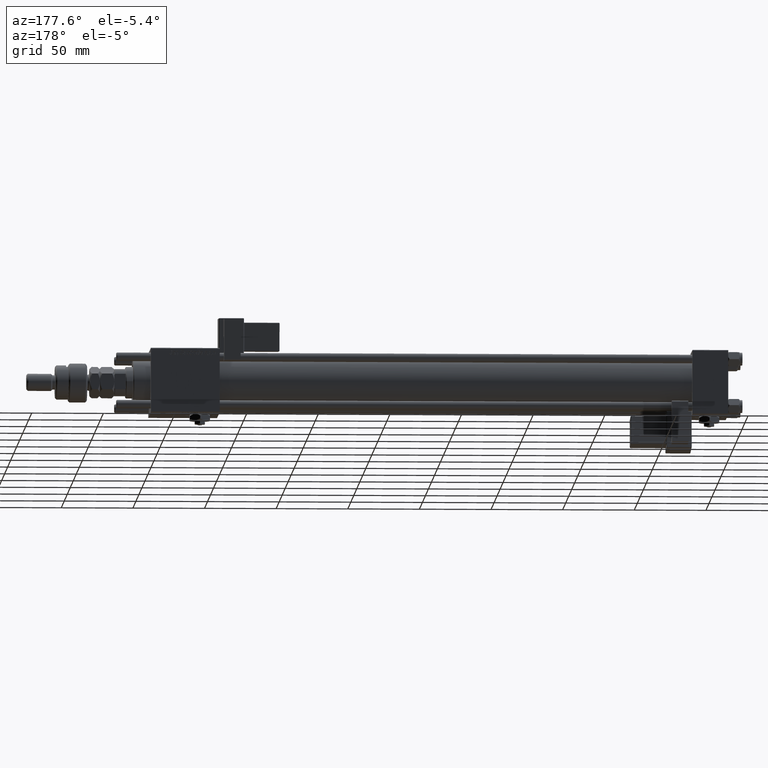
[diagram: clean part render]
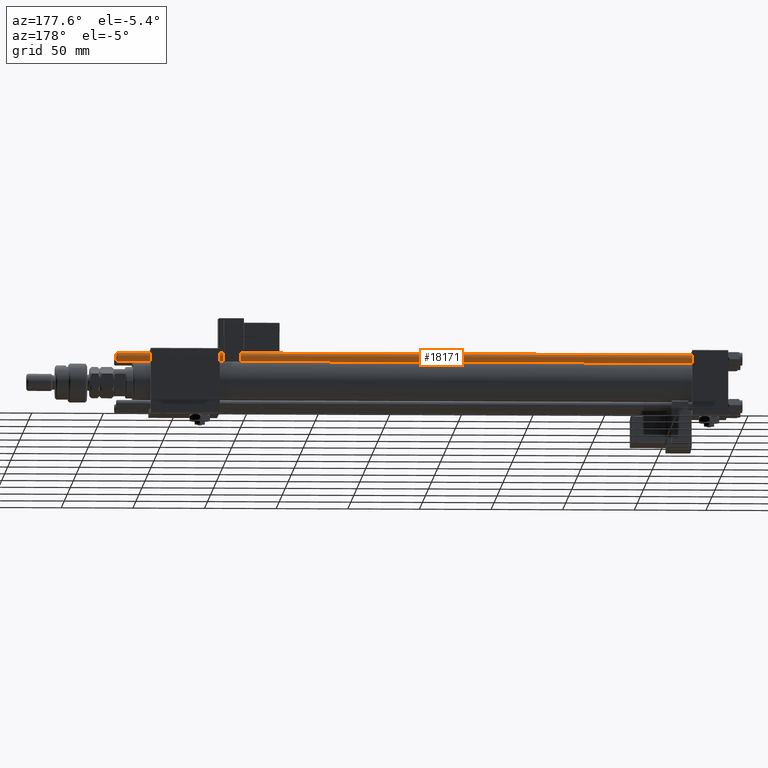
[diagram: same view with one face highlighted and labeled with its STEP entity id]
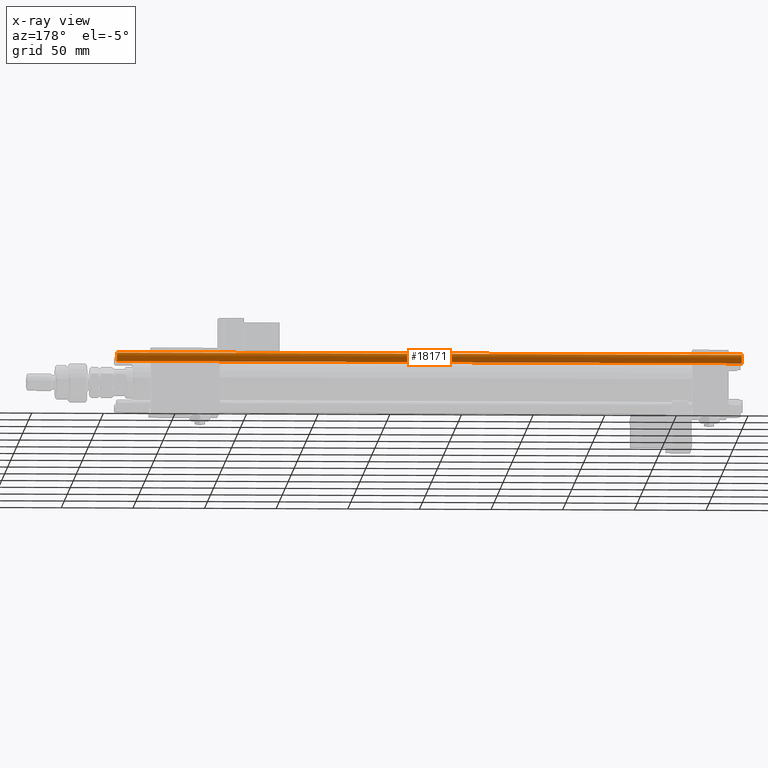
[diagram: x-ray of the same camera — body ghosted, the highlighted face saturated]
A machine part, auxiliary view. The second image highlights one B-rep face of the part: STEP entity #18171.
The next image is the same camera in x-ray: the body ghosted, the highlighted face saturated — about 0% of this face is hidden behind the body in this view.
In plain terms, the highlighted cylindrical surface (edge-blend (fillet) strip) has radius 3 mm, axis along (1, -0, -0).
Its self-contained STEP definition (entity closure, byte-faithful):
#5780 = CARTESIAN_POINT ( 'NONE',  ( 3.000000000000000444, 3.673940397442060361E-16, 437.0000000000000000 ) ) ;
#7430 = CARTESIAN_POINT ( 'NONE',  ( 0.000000000000000000, 0.000000000000000000, 0.5000000000000004441 ) ) ;
#8032 = AXIS2_PLACEMENT_3D ( 'NONE', #7430, #24418, #51732 ) ;
#8725 = AXIS2_PLACEMENT_3D ( 'NONE', #50392, #10950, #10634 ) ;
#10634 = DIRECTION ( 'NONE',  ( -1.000000000000000000, 0.000000000000000000, 0.000000000000000000 ) ) ;
#10950 = DIRECTION ( 'NONE',  ( -0.000000000000000000, -0.000000000000000000, -1.000000000000000000 ) ) ;
#14841 = EDGE_CURVE ( 'NONE', #18854, #29612, #46493, .T. ) ;
#17163 = LINE ( 'NONE', #60497, #40306 ) ;
#18171 = ADVANCED_FACE ( 'NONE', ( #52689 ), #34540, .T. ) ;
#18335 = CARTESIAN_POINT ( 'NONE',  ( 0.000000000000000000, 0.000000000000000000, 436.5000000000000000 ) ) ;
#18854 = VERTEX_POINT ( 'NONE', #21980 ) ;
#20172 = CARTESIAN_POINT ( 'NONE',  ( -3.000000000000000444, 0.000000000000000000, 436.5000000000000000 ) ) ;
#21641 = VERTEX_POINT ( 'NONE', #20172 ) ;
#21980 = CARTESIAN_POINT ( 'NONE',  ( 3.000000000000000444, 3.673940397442060361E-16, 436.5000000000000000 ) ) ;
#22389 = ORIENTED_EDGE ( 'NONE', *, *, #43469, .T. ) ;
#22463 = CIRCLE ( 'NONE', #8032, 3.000000000000000444 ) ;
#24232 = ORIENTED_EDGE ( 'NONE', *, *, #14841, .T. ) ;
#24418 = DIRECTION ( 'NONE',  ( -0.000000000000000000, -0.000000000000000000, 1.000000000000000000 ) ) ;
#26171 = VERTEX_POINT ( 'NONE', #49693 ) ;
#28196 = VECTOR ( 'NONE', #61032, 1000.000000000000000 ) ;
#29116 = CARTESIAN_POINT ( 'NONE',  ( 3.000000000000000444, 3.673940397442060361E-16, 0.5000000000000004441 ) ) ;
#29612 = VERTEX_POINT ( 'NONE', #29116 ) ;
#29788 = EDGE_CURVE ( 'NONE', #29612, #26171, #22463, .T. ) ;
#32122 = ORIENTED_EDGE ( 'NONE', *, *, #29788, .T. ) ;
#34540 = CYLINDRICAL_SURFACE ( 'NONE', #8725, 3.000000000000000444 ) ;
#36107 = EDGE_CURVE ( 'NONE', #21641, #26171, #17163, .T. ) ;
#40306 = VECTOR ( 'NONE', #56933, 1000.000000000000000 ) ;
#43469 = EDGE_CURVE ( 'NONE', #21641, #18854, #57448, .T. ) ;
#44232 = EDGE_LOOP ( 'NONE', ( #22389, #24232, #32122, #58291 ) ) ;
#46493 = LINE ( 'NONE', #5780, #28196 ) ;
#48406 = DIRECTION ( 'NONE',  ( 0.000000000000000000, 0.000000000000000000, -1.000000000000000000 ) ) ;
#49186 = AXIS2_PLACEMENT_3D ( 'NONE', #18335, #48406, #63584 ) ;
#49693 = CARTESIAN_POINT ( 'NONE',  ( -3.000000000000000444, 0.000000000000000000, 0.5000000000000004441 ) ) ;
#50392 = CARTESIAN_POINT ( 'NONE',  ( 0.000000000000000000, 0.000000000000000000, 437.0000000000000000 ) ) ;
#51732 = DIRECTION ( 'NONE',  ( 1.000000000000000000, 0.000000000000000000, 0.000000000000000000 ) ) ;
#52689 = FACE_OUTER_BOUND ( 'NONE', #44232, .T. ) ;
#56933 = DIRECTION ( 'NONE',  ( -0.000000000000000000, -0.000000000000000000, -1.000000000000000000 ) ) ;
#57448 = CIRCLE ( 'NONE', #49186, 3.000000000000000444 ) ;
#58291 = ORIENTED_EDGE ( 'NONE', *, *, #36107, .F. ) ;
#60497 = CARTESIAN_POINT ( 'NONE',  ( -3.000000000000000444, 0.000000000000000000, 437.0000000000000000 ) ) ;
#61032 = DIRECTION ( 'NONE',  ( -0.000000000000000000, -0.000000000000000000, -1.000000000000000000 ) ) ;
#63584 = DIRECTION ( 'NONE',  ( 1.000000000000000000, 0.000000000000000000, 0.000000000000000000 ) ) ;